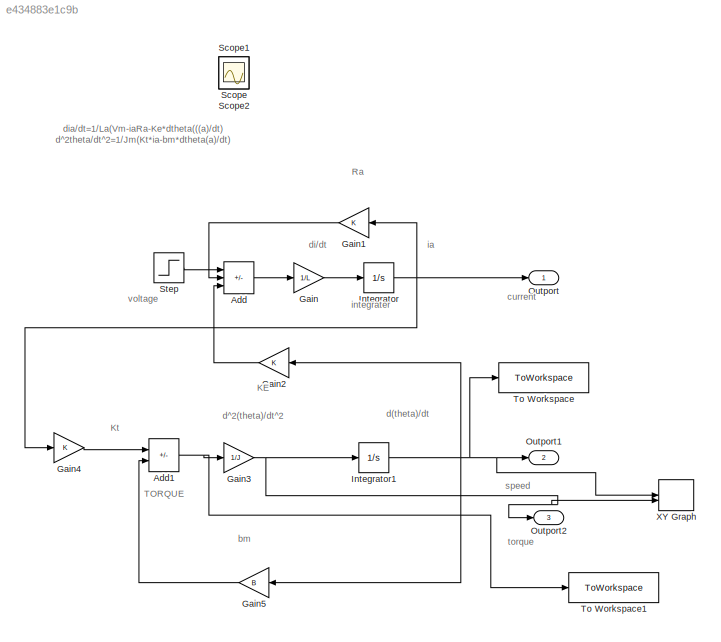
MODEL slx_e434883e1c9b
KIND model
CONFIG AbsTol = auto
CONFIG EnableMultiTasking = off
CONFIG FixedStep = auto
CONFIG MaxStep = auto
CONFIG MinStep = auto
CONFIG RelTol = 1e-3
CONFIG SampleTimeConstraint = Unconstrained
CONFIG SolverName = VariableStepAuto
CONFIG StartTime = 0.0
CONFIG StopTime = 3
BLOCK [Sum] Add
  IconShape = rectangular
  Inputs = +--
BLOCK [Sum] Add1
  IconShape = rectangular
  Inputs = +-
BLOCK [Gain] Gain
  Gain = 1/L
BLOCK [Gain] Gain1
  NameLocation = top
BLOCK [Gain] Gain2
  NameLocation = top
BLOCK [Gain] Gain3
  Gain = 1/J
BLOCK [Gain] Gain4
BLOCK [Gain] Gain5
  Gain = B
  NameLocation = top
BLOCK [Integrator] Integrator
BLOCK [Integrator] Integrator1
BLOCK [Outport] Outport
BLOCK [Outport] Outport1
  Port = 2
BLOCK [Outport] Outport2
  Port = 3
BLOCK [Scope] Scope
  Floating = off
  IOType = viewer
  NumInputPorts = 1
  ScopeSpecificationString = Simulink.scopes.TimeScopeBlockCfg('CurrentConfiguration', extmgr.ConfigurationSet(extmgr.Configuration('Core','General UI',true),extmgr.Configuration('Core','Source UI',true),extmgr.Configuration('Sources','WiredSimulink',true),extmgr.Configuration('Visuals','Time Domain',true,'SerializedDisplays',{struct('MinYLimReal','-4.22974','MaxYLimReal','38.06763','YLabelReal','','MinYLimMag','0.00000','Max...<+1415ch>
BLOCK [Scope] Scope1
  Floating = off
  IOType = viewer
  NumInputPorts = 1
  ScopeSpecificationString = Simulink.scopes.TimeScopeBlockCfg('CurrentConfiguration', extmgr.ConfigurationSet(extmgr.Configuration('Core','General UI',true),extmgr.Configuration('Core','Source UI',true),extmgr.Configuration('Sources','WiredSimulink',true,'DataLoggingVariableName','ScopeData1'),extmgr.Configuration('Visuals','Time Domain',true,'SerializedDisplays',{struct('MinYLimReal','-32.058','MaxYLimReal','288.52199','YLa...<+1403ch>
BLOCK [Scope] Scope2
  Floating = off
  IOType = viewer
  NumInputPorts = 1
  ScopeSpecificationString = Simulink.scopes.TimeScopeBlockCfg('CurrentConfiguration', extmgr.ConfigurationSet(extmgr.Configuration('Core','General UI',true),extmgr.Configuration('Core','Source UI',true),extmgr.Configuration('Sources','WiredSimulink',true,'DataLoggingVariableName','ScopeData2'),extmgr.Configuration('Visuals','Time Domain',true,'SerializedDisplays',{struct('MinYLimReal','-7.3696','MaxYLimReal','21.47503','YLab...<+6811ch>
BLOCK [Step] Step
  After = 230
  SampleTime = 0
BLOCK [ToWorkspace] To Workspace
  FixptAsFi = on
  MaxDataPoints = inf
  SampleTime = -1
  SaveFormat = Timeseries
  VariableName = speed
BLOCK [ToWorkspace] To Workspace1
  FixptAsFi = on
  MaxDataPoints = inf
  SampleTime = -1
  SaveFormat = Timeseries
  VariableName = torque
BLOCK [Record] XY Graph
  CompatibilityTag = XY
  FileSettingsInternal = {"entries":[{"content":{"excelSettings":{"content":{},"type":"Streamout.ExcelSettings"}},"type":"Streamout.FileSettingStorage","uuid":""}],"packageUris":["http:\/\/schema.mathworks.com\/mf0\/streamout_blocks\/R2020a"],"version":"1.0"}
  Layout = [1 1]
  SignalsInternal = {"entries":[{"content":{"signals":[{"content":{"blockPath":[],"dimensions":[1],"domain":"","lineColor":"#a2142f","plots":[1],"port":1,"sid":[""],"signalID":206,"signalName":"Integrator1"},"type":"RecordBlkView.Signal","uuid":""},{"content":{"blockPath":[],"dimensions":[1],"domain":"","lineColor":"#139fff","plots":[1],"port":2,"sid":[""],"signalID":210,"signalName":"Gain3"},"type":"RecordBlkView.Si...<+162ch>
  VisualizationBindings = {"xyplotplugin":{"info":[{"series":[{"bindingParametersList":[{"parameter":"X-Axis","signalID":206,"signalName":"Integrator1"},{"parameter":"Y-Axis","signalID":210,"signalName":"Gain3"}],"seriesID":30853}],"subplotID":1}]}}
ANNOTATION (root): dia/dt=1/La(Vm-iaRa-Ke*dtheta(((a)/dt) d^2theta/dt^2=1/Jm(Kt*ia-bm*dtheta(a)/dt)
ANNOTATION (root): KE
ANNOTATION (root): Kt
ANNOTATION (root): Ra
ANNOTATION (root): TORQUE
ANNOTATION (root): bm
ANNOTATION (root): current
ANNOTATION (root): d(theta)/dt
ANNOTATION (root): d^2(theta)/dt^2
ANNOTATION (root): di/dt
ANNOTATION (root): ia
ANNOTATION (root): integrater
ANNOTATION (root): speed
ANNOTATION (root): torque
ANNOTATION (root): voltage
NET Add1:1 -> Gain3:1, To Workspace1:1
LINE Add:1 -> Gain:1
LINE Gain1:1 -> Add:2
LINE Gain2:1 -> Add:3
NET Gain3:1 -> Integrator1:1, Outport2:1, XY Graph:2
LINE Gain4:1 -> Add1:1
LINE Gain5:1 -> Add1:2
LINE Gain:1 -> Integrator:1
NET Integrator1:1 -> Gain2:1, Gain5:1, Outport1:1, To Workspace:1, XY Graph:1
NET Integrator:1 -> Gain1:1, Gain4:1, Outport:1
LINE Step:1 -> Add:1
note: NET lines group one-source signal fan-out (src -> all destinations, sorted); 1:1 wires keep LINE
